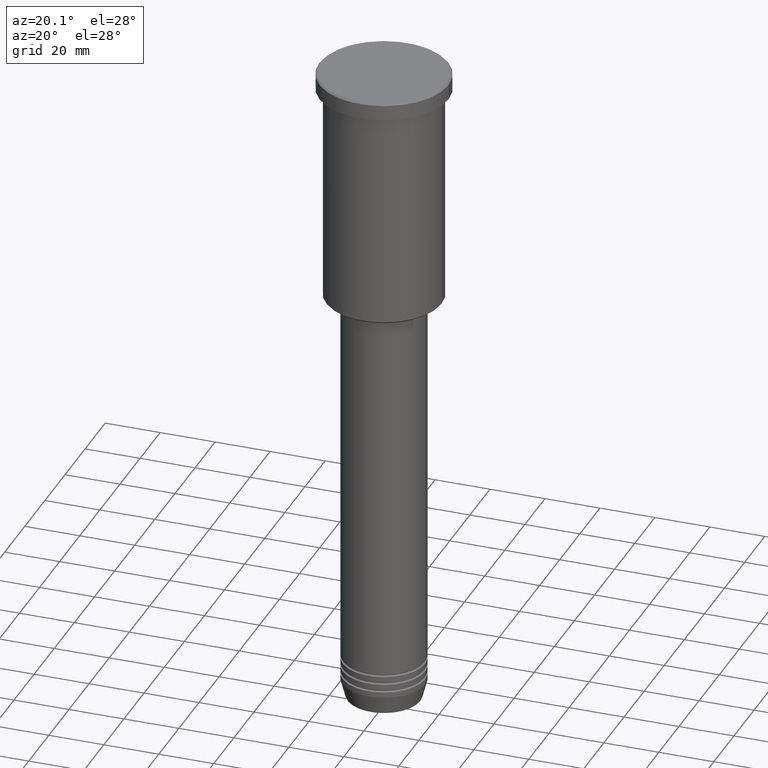
[diagram: clean part render]
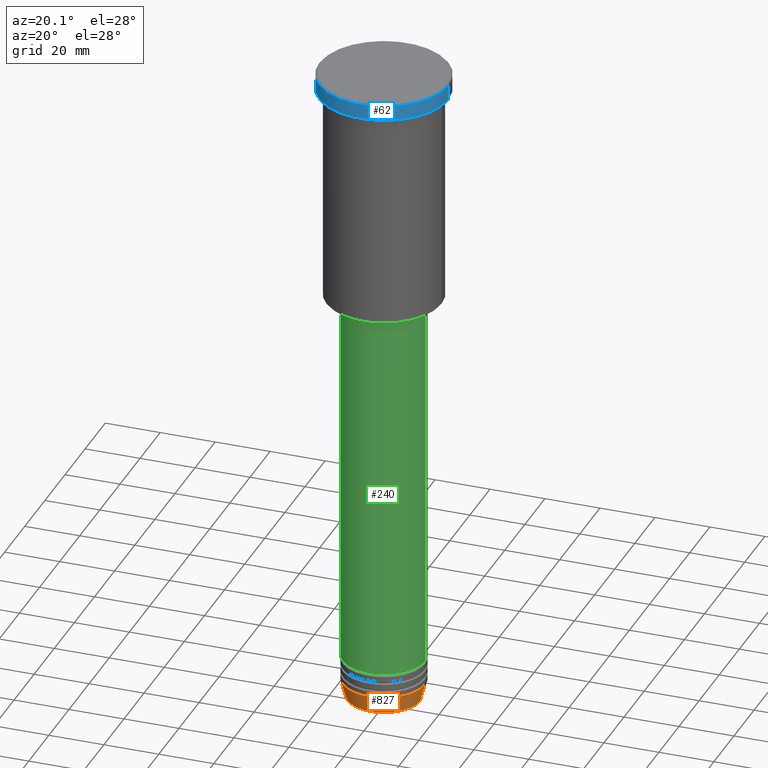
[diagram: same view with three faces highlighted in distinct colors, each labeled with its STEP entity id]
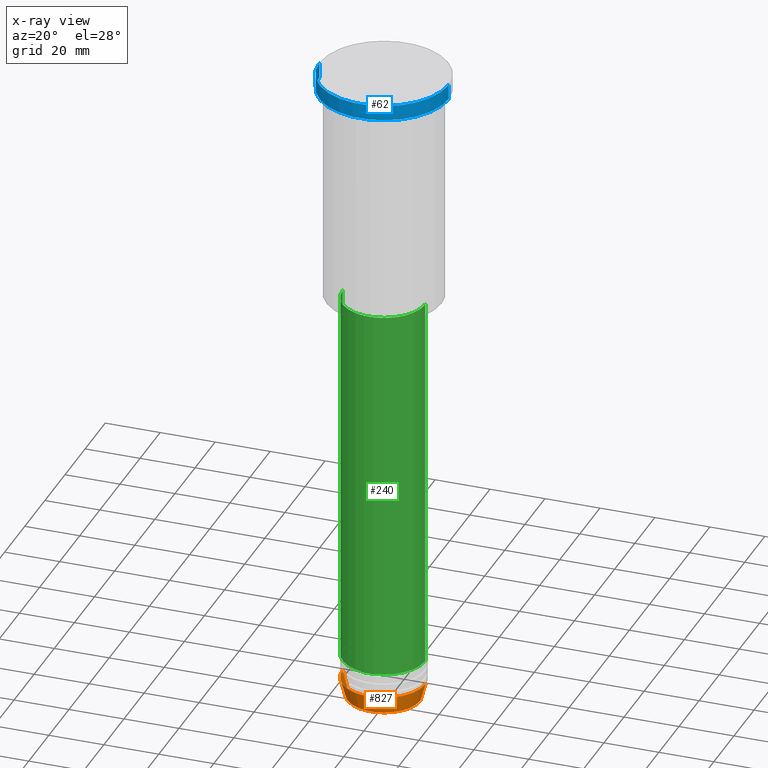
[diagram: x-ray of the same camera — body ghosted, the three highlighted faces saturated]
A machine part, auxiliary view with three faces highlighted in distinct colors.
The next image is the same camera in x-ray (body ghosted, the three faces saturated) — at least one of them is partly hidden behind the body in this view.
Their STEP definitions:

[orange] entity #827 — the highlighted conical surface has half-angle 15 deg.
#2 = VECTOR ( 'NONE', #872, 1000.000000000000000 ) ;
#18 = AXIS2_PLACEMENT_3D ( 'NONE', #372, #197, #1175 ) ;
#23 = EDGE_CURVE ( 'NONE', #740, #986, #711, .T. ) ;
#29 = CARTESIAN_POINT ( 'NONE',  ( -15.00000000000000000, 1.836970198721029589E-15, -234.0000000000000000 ) ) ;
#56 = CARTESIAN_POINT ( 'NONE',  ( 0.000000000000000000, 0.000000000000000000, -234.0000000000000000 ) ) ;
#103 = EDGE_CURVE ( 'NONE', #1070, #1169, #1068, .T. ) ;
#132 = ORIENTED_EDGE ( 'NONE', *, *, #23, .F. ) ;
#144 = EDGE_CURVE ( 'NONE', #986, #1169, #555, .T. ) ;
#171 = CIRCLE ( 'NONE', #838, 13.22365507213719305 ) ;
#197 = DIRECTION ( 'NONE',  ( -0.000000000000000000, -0.000000000000000000, 1.000000000000000000 ) ) ;
#244 = CARTESIAN_POINT ( 'NONE',  ( -15.00000000000000000, 1.836970198721029589E-15, -234.0000000000000000 ) ) ;
#272 = CARTESIAN_POINT ( 'NONE',  ( -13.22365507213719305, 1.728200442216588583E-15, -240.6294095225512422 ) ) ;
#361 = EDGE_CURVE ( 'NONE', #740, #1070, #171, .T. ) ;
#362 = FACE_OUTER_BOUND ( 'NONE', #1116, .T. ) ;
#372 = CARTESIAN_POINT ( 'NONE',  ( 0.000000000000000000, 0.000000000000000000, -234.0000000000000000 ) ) ;
#402 = AXIS2_PLACEMENT_3D ( 'NONE', #56, #420, #1150 ) ;
#420 = DIRECTION ( 'NONE',  ( -0.000000000000000000, -0.000000000000000000, 1.000000000000000000 ) ) ;
#424 = CARTESIAN_POINT ( 'NONE',  ( 15.00000000000000000, 0.000000000000000000, -234.0000000000000000 ) ) ;
#437 = ORIENTED_EDGE ( 'NONE', *, *, #361, .T. ) ;
#480 = DIRECTION ( 'NONE',  ( 1.000000000000000000, 0.000000000000000000, 0.000000000000000000 ) ) ;
#489 = DIRECTION ( 'NONE',  ( -0.000000000000000000, -0.000000000000000000, 1.000000000000000000 ) ) ;
#507 = ORIENTED_EDGE ( 'NONE', *, *, #144, .F. ) ;
#555 = CIRCLE ( 'NONE', #402, 15.00000000000000000 ) ;
#661 = CARTESIAN_POINT ( 'NONE',  ( 0.000000000000000000, 0.000000000000000000, -240.6294095225512422 ) ) ;
#669 = CONICAL_SURFACE ( 'NONE', #18, 15.00000000000000000, 0.2617993877991500740 ) ;
#711 = LINE ( 'NONE', #244, #952 ) ;
#740 = VERTEX_POINT ( 'NONE', #272 ) ;
#777 = ORIENTED_EDGE ( 'NONE', *, *, #103, .T. ) ;
#799 = DIRECTION ( 'NONE',  ( -0.2588190451025213501, 3.169619151431772337E-17, 0.9659258262890680902 ) ) ;
#827 = ADVANCED_FACE ( 'NONE', ( #362 ), #669, .T. ) ;
#838 = AXIS2_PLACEMENT_3D ( 'NONE', #661, #489, #480 ) ;
#872 = DIRECTION ( 'NONE',  ( 0.2588190451025213501, 0.000000000000000000, 0.9659258262890680902 ) ) ;
#883 = CARTESIAN_POINT ( 'NONE',  ( 15.00000000000000000, 0.000000000000000000, -234.0000000000000000 ) ) ;
#952 = VECTOR ( 'NONE', #799, 1000.000000000000000 ) ;
#986 = VERTEX_POINT ( 'NONE', #29 ) ;
#1024 = CARTESIAN_POINT ( 'NONE',  ( 13.22365507213719305, 0.000000000000000000, -240.6294095225512422 ) ) ;
#1068 = LINE ( 'NONE', #424, #2 ) ;
#1070 = VERTEX_POINT ( 'NONE', #1024 ) ;
#1116 = EDGE_LOOP ( 'NONE', ( #132, #437, #777, #507 ) ) ;
#1150 = DIRECTION ( 'NONE',  ( 1.000000000000000000, 0.000000000000000000, 0.000000000000000000 ) ) ;
#1169 = VERTEX_POINT ( 'NONE', #883 ) ;
#1175 = DIRECTION ( 'NONE',  ( 1.000000000000000000, 0.000000000000000000, 0.000000000000000000 ) ) ;

[blue] entity #62 — the highlighted cylindrical surface (partial cylindrical patch) has radius 23.5 mm, axis along (-0, -0, 1).
#1 = AXIS2_PLACEMENT_3D ( 'NONE', #156, #1063, #517 ) ;
#62 = ADVANCED_FACE ( 'NONE', ( #336 ), #328, .T. ) ;
#136 = CARTESIAN_POINT ( 'NONE',  ( -23.50000000000000000, 2.877919977996280320E-15, 0.000000000000000000 ) ) ;
#149 = DIRECTION ( 'NONE',  ( -0.000000000000000000, -0.000000000000000000, 1.000000000000000000 ) ) ;
#156 = CARTESIAN_POINT ( 'NONE',  ( 0.000000000000000000, 0.000000000000000000, -0.5000000000000281997 ) ) ;
#207 = AXIS2_PLACEMENT_3D ( 'NONE', #823, #443, #910 ) ;
#294 = DIRECTION ( 'NONE',  ( -0.000000000000000000, -0.000000000000000000, 1.000000000000000000 ) ) ;
#328 = CYLINDRICAL_SURFACE ( 'NONE', #456, 23.50000000000000000 ) ;
#336 = FACE_OUTER_BOUND ( 'NONE', #1148, .T. ) ;
#337 = EDGE_CURVE ( 'NONE', #758, #466, #408, .T. ) ;
#341 = DIRECTION ( 'NONE',  ( 1.000000000000000000, 0.000000000000000000, 0.000000000000000000 ) ) ;
#385 = ORIENTED_EDGE ( 'NONE', *, *, #549, .T. ) ;
#408 = LINE ( 'NONE', #136, #797 ) ;
#427 = LINE ( 'NONE', #967, #854 ) ;
#428 = DIRECTION ( 'NONE',  ( -0.000000000000000000, -0.000000000000000000, 1.000000000000000000 ) ) ;
#443 = DIRECTION ( 'NONE',  ( -0.000000000000000000, -0.000000000000000000, 1.000000000000000000 ) ) ;
#456 = AXIS2_PLACEMENT_3D ( 'NONE', #700, #428, #341 ) ;
#466 = VERTEX_POINT ( 'NONE', #615 ) ;
#468 = VERTEX_POINT ( 'NONE', #509 ) ;
#509 = CARTESIAN_POINT ( 'NONE',  ( 23.50000000000000000, 0.000000000000000000, -5.999999999999994671 ) ) ;
#517 = DIRECTION ( 'NONE',  ( 1.000000000000000000, 0.000000000000000000, 0.000000000000000000 ) ) ;
#549 = EDGE_CURVE ( 'NONE', #468, #916, #427, .T. ) ;
#575 = CIRCLE ( 'NONE', #1, 23.50000000000000000 ) ;
#613 = EDGE_CURVE ( 'NONE', #758, #468, #1157, .T. ) ;
#615 = CARTESIAN_POINT ( 'NONE',  ( -23.50000000000000000, 2.877919977996280320E-15, -0.5000000000000281997 ) ) ;
#700 = CARTESIAN_POINT ( 'NONE',  ( 0.000000000000000000, 0.000000000000000000, 0.000000000000000000 ) ) ;
#708 = ORIENTED_EDGE ( 'NONE', *, *, #1115, .T. ) ;
#758 = VERTEX_POINT ( 'NONE', #1015 ) ;
#797 = VECTOR ( 'NONE', #294, 1000.000000000000000 ) ;
#823 = CARTESIAN_POINT ( 'NONE',  ( 0.000000000000000000, 0.000000000000000000, -5.999999999999994671 ) ) ;
#854 = VECTOR ( 'NONE', #149, 1000.000000000000000 ) ;
#910 = DIRECTION ( 'NONE',  ( 1.000000000000000000, 0.000000000000000000, 0.000000000000000000 ) ) ;
#916 = VERTEX_POINT ( 'NONE', #999 ) ;
#967 = CARTESIAN_POINT ( 'NONE',  ( 23.50000000000000000, 0.000000000000000000, 0.000000000000000000 ) ) ;
#999 = CARTESIAN_POINT ( 'NONE',  ( 23.50000000000000000, 0.000000000000000000, -0.5000000000000281997 ) ) ;
#1015 = CARTESIAN_POINT ( 'NONE',  ( -23.50000000000000000, 2.877919977996280320E-15, -5.999999999999994671 ) ) ;
#1044 = ORIENTED_EDGE ( 'NONE', *, *, #337, .F. ) ;
#1063 = DIRECTION ( 'NONE',  ( 0.000000000000000000, 0.000000000000000000, -1.000000000000000000 ) ) ;
#1080 = ORIENTED_EDGE ( 'NONE', *, *, #613, .T. ) ;
#1115 = EDGE_CURVE ( 'NONE', #916, #466, #575, .T. ) ;
#1148 = EDGE_LOOP ( 'NONE', ( #1044, #1080, #385, #708 ) ) ;
#1157 = CIRCLE ( 'NONE', #207, 23.50000000000000000 ) ;

[green] entity #240 — the highlighted cylindrical surface (partial cylindrical patch) has radius 15 mm, axis along (-0, -0, 1).
#10 = CARTESIAN_POINT ( 'NONE',  ( -15.00000000000000000, 1.836970198721029589E-15, -87.00000000000000000 ) ) ;
#50 = EDGE_LOOP ( 'NONE', ( #409, #290, #802, #205 ) ) ;
#81 = DIRECTION ( 'NONE',  ( -0.000000000000000000, -0.000000000000000000, 1.000000000000000000 ) ) ;
#100 = CARTESIAN_POINT ( 'NONE',  ( 15.00000000000000000, 0.000000000000000000, -87.00000000000000000 ) ) ;
#118 = VERTEX_POINT ( 'NONE', #1073 ) ;
#146 = CARTESIAN_POINT ( 'NONE',  ( -15.00000000000000000, 1.836970198721029589E-15, 0.000000000000000000 ) ) ;
#172 = DIRECTION ( 'NONE',  ( -0.000000000000000000, -0.000000000000000000, 1.000000000000000000 ) ) ;
#175 = DIRECTION ( 'NONE',  ( 1.000000000000000000, 0.000000000000000000, 0.000000000000000000 ) ) ;
#187 = VERTEX_POINT ( 'NONE', #100 ) ;
#193 = FACE_OUTER_BOUND ( 'NONE', #50, .T. ) ;
#205 = ORIENTED_EDGE ( 'NONE', *, *, #945, .F. ) ;
#233 = CARTESIAN_POINT ( 'NONE',  ( -15.00000000000000000, 1.836970198721029589E-15, -224.9999999999999716 ) ) ;
#240 = ADVANCED_FACE ( 'NONE', ( #193 ), #444, .T. ) ;
#258 = DIRECTION ( 'NONE',  ( 1.000000000000000000, 0.000000000000000000, 0.000000000000000000 ) ) ;
#290 = ORIENTED_EDGE ( 'NONE', *, *, #605, .T. ) ;
#358 = VECTOR ( 'NONE', #172, 1000.000000000000000 ) ;
#396 = VECTOR ( 'NONE', #521, 1000.000000000000000 ) ;
#409 = ORIENTED_EDGE ( 'NONE', *, *, #453, .F. ) ;
#417 = AXIS2_PLACEMENT_3D ( 'NONE', #559, #1093, #175 ) ;
#444 = CYLINDRICAL_SURFACE ( 'NONE', #417, 15.00000000000000000 ) ;
#453 = EDGE_CURVE ( 'NONE', #1100, #909, #1047, .T. ) ;
#461 = CARTESIAN_POINT ( 'NONE',  ( 15.00000000000000000, 0.000000000000000000, 0.000000000000000000 ) ) ;
#470 = CIRCLE ( 'NONE', #1141, 15.00000000000000000 ) ;
#487 = DIRECTION ( 'NONE',  ( -0.000000000000000000, -0.000000000000000000, 1.000000000000000000 ) ) ;
#521 = DIRECTION ( 'NONE',  ( -0.000000000000000000, -0.000000000000000000, 1.000000000000000000 ) ) ;
#559 = CARTESIAN_POINT ( 'NONE',  ( 0.000000000000000000, 0.000000000000000000, 0.000000000000000000 ) ) ;
#605 = EDGE_CURVE ( 'NONE', #1100, #118, #470, .T. ) ;
#749 = DIRECTION ( 'NONE',  ( 1.000000000000000000, 0.000000000000000000, 0.000000000000000000 ) ) ;
#802 = ORIENTED_EDGE ( 'NONE', *, *, #904, .T. ) ;
#904 = EDGE_CURVE ( 'NONE', #118, #187, #917, .T. ) ;
#909 = VERTEX_POINT ( 'NONE', #10 ) ;
#917 = LINE ( 'NONE', #461, #358 ) ;
#945 = EDGE_CURVE ( 'NONE', #909, #187, #970, .T. ) ;
#970 = CIRCLE ( 'NONE', #1159, 15.00000000000000000 ) ;
#1047 = LINE ( 'NONE', #146, #396 ) ;
#1073 = CARTESIAN_POINT ( 'NONE',  ( 15.00000000000000000, 0.000000000000000000, -224.9999999999999716 ) ) ;
#1093 = DIRECTION ( 'NONE',  ( -0.000000000000000000, -0.000000000000000000, 1.000000000000000000 ) ) ;
#1100 = VERTEX_POINT ( 'NONE', #233 ) ;
#1134 = CARTESIAN_POINT ( 'NONE',  ( 0.000000000000000000, 0.000000000000000000, -87.00000000000000000 ) ) ;
#1141 = AXIS2_PLACEMENT_3D ( 'NONE', #1176, #81, #258 ) ;
#1159 = AXIS2_PLACEMENT_3D ( 'NONE', #1134, #487, #749 ) ;
#1176 = CARTESIAN_POINT ( 'NONE',  ( 0.000000000000000000, 0.000000000000000000, -224.9999999999999716 ) ) ;